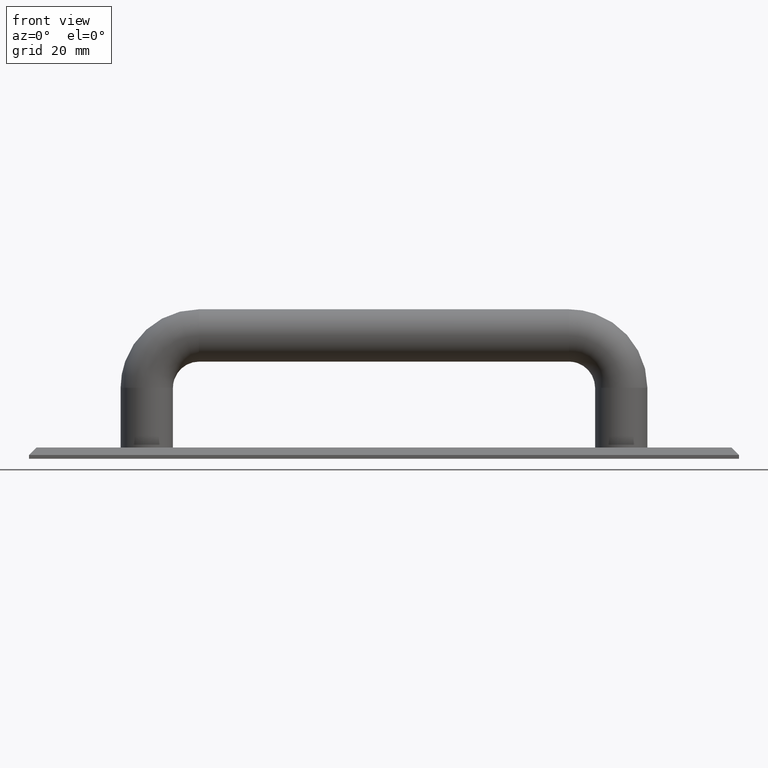
[diagram: clean part render]
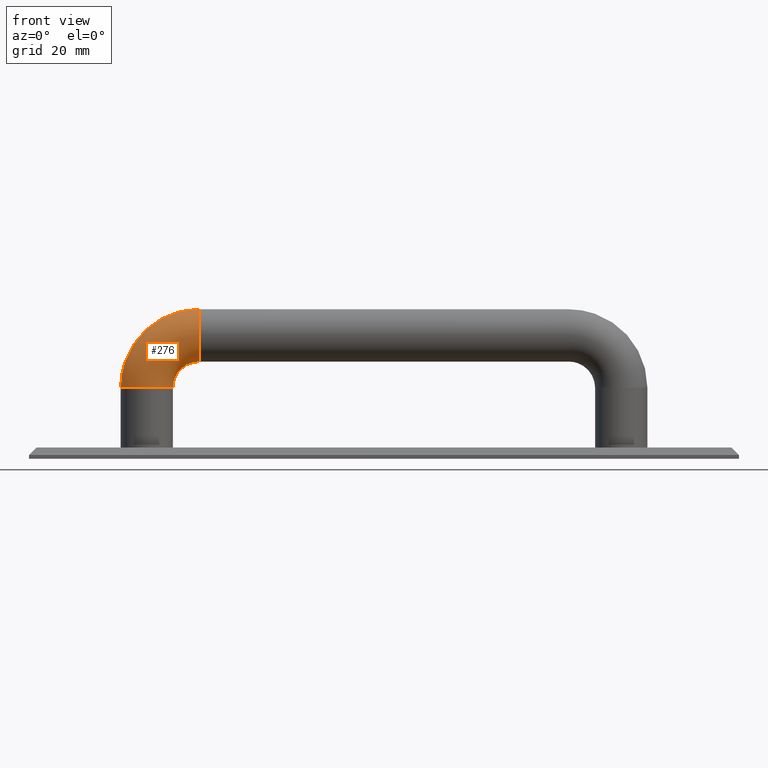
[diagram: same view with one face highlighted and labeled with its STEP entity id]
A machine part, front view. The second image highlights one B-rep face of the part: STEP entity #276.
In plain terms, the highlighted toroidal blend (fillet) surface has major radius 14 mm and minor (blend) radius 7 mm.
Its self-contained STEP definition (entity closure, byte-faithful):
#67=TOROIDAL_SURFACE('',#301,14.,7.);
#71=FACE_BOUND('',#108,.T.);
#86=FACE_OUTER_BOUND('',#107,.T.);
#107=EDGE_LOOP('',(#209));
#108=EDGE_LOOP('',(#210));
#137=CIRCLE('',#296,7.);
#141=CIRCLE('',#302,7.);
#149=VERTEX_POINT('',#412);
#153=VERTEX_POINT('',#422);
#173=EDGE_CURVE('',#149,#149,#137,.T.);
#177=EDGE_CURVE('',#153,#153,#141,.T.);
#209=ORIENTED_EDGE('',*,*,#173,.T.);
#210=ORIENTED_EDGE('',*,*,#177,.F.);
#276=ADVANCED_FACE('',(#86,#71),#67,.T.);
#296=AXIS2_PLACEMENT_3D('',#413,#330,#331);
#301=AXIS2_PLACEMENT_3D('',#421,#340,#341);
#302=AXIS2_PLACEMENT_3D('',#423,#342,#343);
#330=DIRECTION('center_axis',(-6.17718073851592E-16,0.,1.));
#331=DIRECTION('ref_axis',(1.,0.,6.17718073851592E-16));
#340=DIRECTION('center_axis',(0.,-1.,0.));
#341=DIRECTION('ref_axis',(0.,0.,-1.));
#342=DIRECTION('center_axis',(1.,0.,1.25213123078025E-15));
#343=DIRECTION('ref_axis',(1.25213123078025E-15,0.,-1.));
#412=CARTESIAN_POINT('',(24.5000000000001,12.5,19.));
#413=CARTESIAN_POINT('Origin',(31.5,12.5,19.));
#421=CARTESIAN_POINT('Origin',(45.5,12.5,19.));
#422=CARTESIAN_POINT('',(45.5,12.5,40.));
#423=CARTESIAN_POINT('Origin',(45.5,12.5,33.));